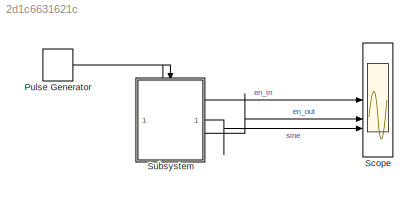
MODEL slx_2d1c6631621c
KIND model
CONFIG AbsTol = auto
CONFIG EnableMultiTasking = off
CONFIG FixedStep = 0.001
CONFIG MaxStep = auto
CONFIG MinStep = auto
CONFIG RelTol = 1e-3
CONFIG SampleTimeConstraint = Unconstrained
CONFIG SolverName = FixedStepAuto
CONFIG StartTime = 0.0
CONFIG StopTime = 3
BLOCK [DiscretePulseGenerator] Pulse Generator
  PulseType = Time based
  PulseWidth = 50
BLOCK [Scope] Scope
  Floating = off
  NumInputPorts = 3
  ScopeSpecificationString = Simulink.scopes.TimeScopeBlockCfg('CurrentConfiguration', extmgr.ConfigurationSet(extmgr.Configuration('Core','General UI',true),extmgr.Configuration('Core','Source UI',true),extmgr.Configuration('Sources','WiredSimulink',true),extmgr.Configuration('Visuals','Time Domain',true,'SerializedDisplays',{struct('MinYLimReal','-1.24991','MaxYLimReal','1.24999','YLabelReal','','MinYLimMag','0.00000','MaxY...<+1514ch>
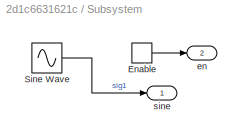
BLOCK [SubSystem] Subsystem
BLOCK [EnablePort] Subsystem/Enable
  ShowOutputPort = on
  StatesWhenEnabling = reset
BLOCK [Sin] Subsystem/Sine Wave
  Frequency = 4*2*pi
  SampleTime = 0.001
BLOCK [Outport] Subsystem/en
  Port = 2
BLOCK [Outport] Subsystem/sine
NET Pulse Generator:1 -> Scope:1, Subsystem:enable
LINE Subsystem/Enable:1 -> Subsystem/en:1
LINE Subsystem/Sine Wave:1 -> Subsystem/sine:1
LINE Subsystem:1 -> Scope:3
LINE Subsystem:2 -> Scope:2
note: NET lines group one-source signal fan-out (src -> all destinations, sorted); 1:1 wires keep LINE
